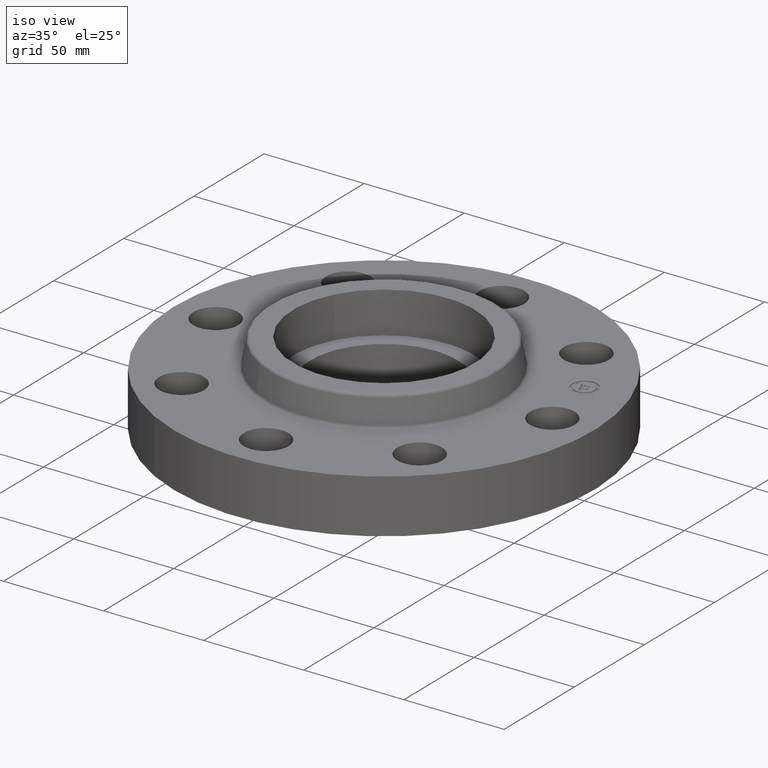
[diagram: clean part render]
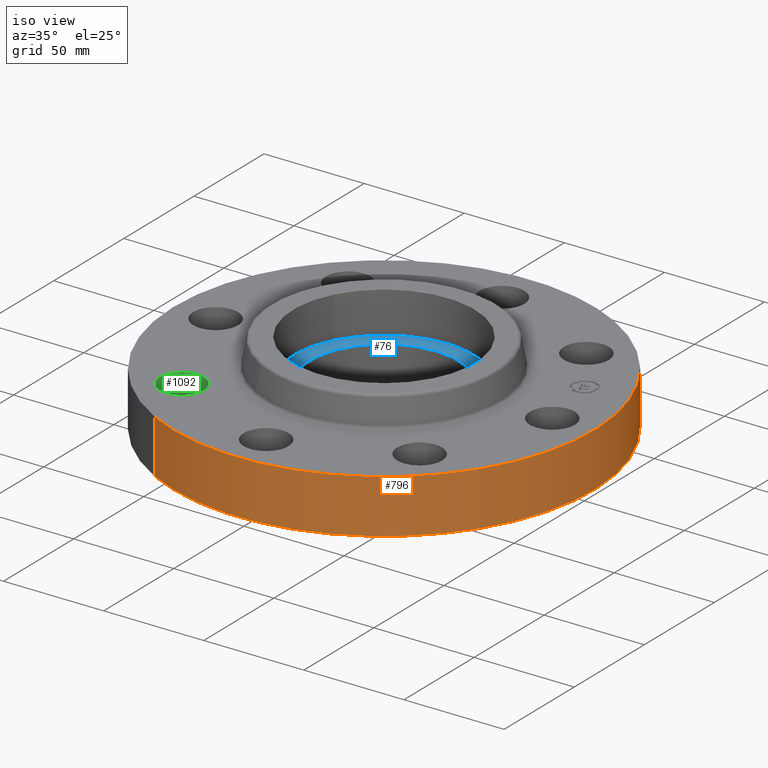
[diagram: same view with three faces highlighted in distinct colors, each labeled with its STEP entity id]
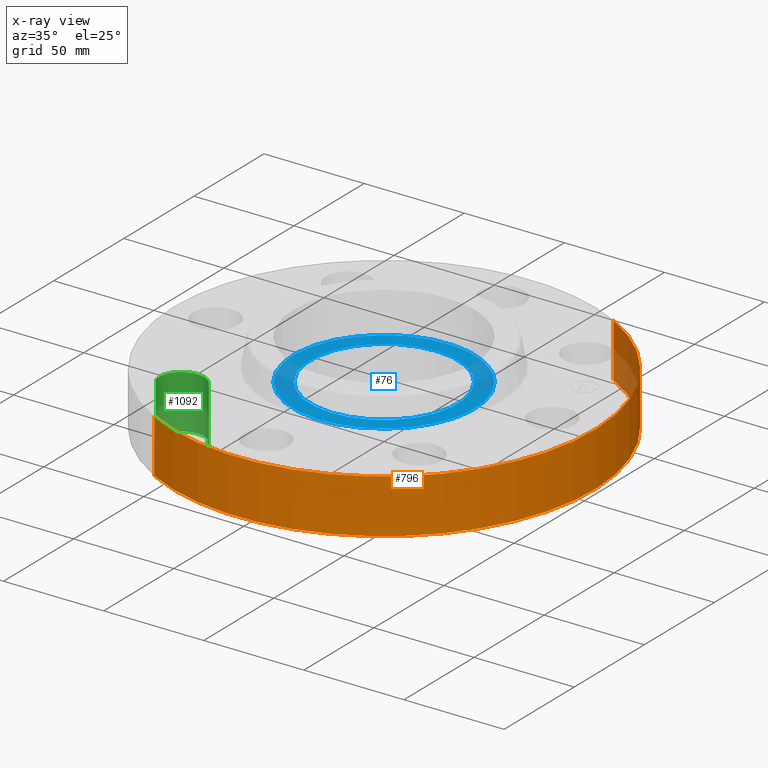
[diagram: x-ray of the same camera — body ghosted, the three highlighted faces saturated]
A machine part, iso view with three faces highlighted in distinct colors.
The next image is the same camera in x-ray (body ghosted, the three faces saturated) — at least one of them is partly hidden behind the body in this view.
Their STEP definitions:

[orange] entity #796 — the highlighted cylindrical surface (partial cylindrical patch) has radius 104.775 mm, axis along (0, 0, -1).
#505=AXIS2_PLACEMENT_3D('Circle Axis2P3D',#503,#504,$) ;
#783=AXIS2_PLACEMENT_3D('Cylinder Axis2P3D',#780,#781,#782) ;
#787=AXIS2_PLACEMENT_3D('Circle Axis2P3D',#785,#786,$) ;
#498=CARTESIAN_POINT('Vertex',(-1.97763034678,-3.62002806781,0.)) ;
#500=CARTESIAN_POINT('Vertex',(1.97763034678,3.62002806783,0.)) ;
#503=CARTESIAN_POINT('Axis2P3D Location',(-1.1189649382E-015,9.99963017027E-012,0.)) ;
#735=CARTESIAN_POINT('Line Origine',(-1.97763034675,-3.62002806781,0.530000000008)) ;
#739=CARTESIAN_POINT('Vertex',(-1.97763034675,-3.62002806781,1.06000000002)) ;
#758=CARTESIAN_POINT('Vertex',(1.97763034678,3.62002806783,1.06)) ;
#761=CARTESIAN_POINT('Line Origine',(1.97763034675,3.62002806781,0.530000000008)) ;
#780=CARTESIAN_POINT('Axis2P3D Location',(0.,0.,0.783750000003)) ;
#785=CARTESIAN_POINT('Axis2P3D Location',(0.,0.,1.06000000002)) ;
#504=DIRECTION('Axis2P3D Direction',(0.,0.,-0.0393700787402)) ;
#736=DIRECTION('Vector Direction',(0.,0.,-0.0393700787402)) ;
#762=DIRECTION('Vector Direction',(0.,0.,-0.0393700787402)) ;
#781=DIRECTION('Axis2P3D Direction',(0.,0.,-0.0393700787402)) ;
#782=DIRECTION('Axis2P3D XDirection',(0.0188750212049,0.0345504945626,0.)) ;
#786=DIRECTION('Axis2P3D Direction',(0.,0.,-0.0393700787402)) ;
#737=VECTOR('Line Direction',#736,0.0393700787402) ;
#763=VECTOR('Line Direction',#762,0.0393700787402) ;
#791=ORIENTED_EDGE('',*,*,#507,.F.) ;
#792=ORIENTED_EDGE('',*,*,#765,.T.) ;
#793=ORIENTED_EDGE('',*,*,#789,.T.) ;
#794=ORIENTED_EDGE('',*,*,#741,.F.) ;
#796=ADVANCED_FACE('PartBody',(#795),#784,.T.) ;
#506=CIRCLE('generated circle',#505,4.12500000004) ;
#788=CIRCLE('generated circle',#787,4.12500000002) ;
#784=CYLINDRICAL_SURFACE('generated cylinder',#783,4.12500000002) ;
#507=EDGE_CURVE('',#501,#499,#506,.T.) ;
#741=EDGE_CURVE('',#499,#740,#738,.F.) ;
#765=EDGE_CURVE('',#501,#759,#764,.F.) ;
#789=EDGE_CURVE('',#759,#740,#788,.T.) ;
#790=EDGE_LOOP('',(#791,#792,#793,#794)) ;
#795=FACE_OUTER_BOUND('',#790,.T.) ;
#738=LINE('Line',#735,#737) ;
#764=LINE('Line',#761,#763) ;
#499=VERTEX_POINT('',#498) ;
#501=VERTEX_POINT('',#500) ;
#740=VERTEX_POINT('',#739) ;
#759=VERTEX_POINT('',#758) ;

[blue] entity #76 — the highlighted planar face has unit normal (0, 0, -1).
#38=AXIS2_PLACEMENT_3D('Plane Axis2P3D',#35,#36,#37) ;
#42=AXIS2_PLACEMENT_3D('Circle Axis2P3D',#40,#41,$) ;
#51=AXIS2_PLACEMENT_3D('Circle Axis2P3D',#49,#50,$) ;
#60=AXIS2_PLACEMENT_3D('Circle Axis2P3D',#58,#59,$) ;
#69=AXIS2_PLACEMENT_3D('Circle Axis2P3D',#67,#68,$) ;
#35=CARTESIAN_POINT('Axis2P3D Location',(1.39870617276E-016,1.04902962957E-016,0.820000000003)) ;
#40=CARTESIAN_POINT('Axis2P3D Location',(3.49676543189E-016,-7.34320740697E-016,0.820000000003)) ;
#44=CARTESIAN_POINT('Vertex',(-1.566484873,0.855774586419,0.820000000003)) ;
#46=CARTESIAN_POINT('Vertex',(1.566484873,-0.855774586419,0.820000000003)) ;
#49=CARTESIAN_POINT('Axis2P3D Location',(-6.99353086374E-017,9.44126666611E-016,0.820000000003)) ;
#58=CARTESIAN_POINT('Axis2P3D Location',(1.39870617276E-016,1.04902962957E-016,0.820000000003)) ;
#62=CARTESIAN_POINT('Vertex',(-0.695167030978,-1.27249471477,0.820000000003)) ;
#64=CARTESIAN_POINT('Vertex',(0.695167030978,1.27249471477,0.820000000003)) ;
#67=CARTESIAN_POINT('Axis2P3D Location',(1.39870617276E-016,1.04902962957E-016,0.820000000003)) ;
#36=DIRECTION('Axis2P3D Direction',(0.,0.,-0.0393700787402)) ;
#37=DIRECTION('Axis2P3D XDirection',(0.0393700787402,0.,0.)) ;
#41=DIRECTION('Axis2P3D Direction',(0.,0.,-0.0393700787402)) ;
#50=DIRECTION('Axis2P3D Direction',(0.,0.,-0.0393700787402)) ;
#59=DIRECTION('Axis2P3D Direction',(0.,0.,-0.0393700787402)) ;
#68=DIRECTION('Axis2P3D Direction',(0.,0.,-0.0393700787402)) ;
#55=ORIENTED_EDGE('',*,*,#48,.F.) ;
#56=ORIENTED_EDGE('',*,*,#53,.F.) ;
#73=ORIENTED_EDGE('',*,*,#66,.T.) ;
#74=ORIENTED_EDGE('',*,*,#71,.T.) ;
#75=FACE_BOUND('',#72,.T.) ;
#76=ADVANCED_FACE('PartBody',(#57,#75),#39,.F.) ;
#43=CIRCLE('generated circle',#42,1.78500000003) ;
#52=CIRCLE('generated circle',#51,1.78500000003) ;
#61=CIRCLE('generated circle',#60,1.45000000002) ;
#70=CIRCLE('generated circle',#69,1.45000000002) ;
#48=EDGE_CURVE('',#45,#47,#43,.T.) ;
#53=EDGE_CURVE('',#47,#45,#52,.T.) ;
#66=EDGE_CURVE('',#63,#65,#61,.T.) ;
#71=EDGE_CURVE('',#65,#63,#70,.T.) ;
#54=EDGE_LOOP('',(#55,#56)) ;
#72=EDGE_LOOP('',(#73,#74)) ;
#57=FACE_OUTER_BOUND('',#54,.T.) ;
#39=PLANE('',#38) ;
#45=VERTEX_POINT('',#44) ;
#47=VERTEX_POINT('',#46) ;
#63=VERTEX_POINT('',#62) ;
#65=VERTEX_POINT('',#64) ;

[green] entity #1092 — the highlighted cylindrical surface (edge-blend (fillet) strip) has radius 11.176 mm, axis along (-0, 0, -1).
#581=AXIS2_PLACEMENT_3D('Circle Axis2P3D',#579,#580,$) ;
#1079=AXIS2_PLACEMENT_3D('Cylinder Axis2P3D',#1076,#1077,#1078) ;
#1083=AXIS2_PLACEMENT_3D('Circle Axis2P3D',#1081,#1082,$) ;
#574=CARTESIAN_POINT('Vertex',(-1.91832160856,-2.21664605207,0.)) ;
#576=CARTESIAN_POINT('Vertex',(-2.76272528292,-2.46440083946,0.)) ;
#579=CARTESIAN_POINT('Axis2P3D Location',(-2.34052344575,-2.34052344572,0.)) ;
#1031=CARTESIAN_POINT('Line Origine',(-1.91832160854,-2.21664605204,0.529999999983)) ;
#1035=CARTESIAN_POINT('Vertex',(-1.91832160855,-2.21664605203,1.05999999999)) ;
#1038=CARTESIAN_POINT('Line Origine',(-2.76272528294,-2.46440083944,0.529999999983)) ;
#1042=CARTESIAN_POINT('Vertex',(-2.76272528294,-2.46440083944,1.05999999999)) ;
#1076=CARTESIAN_POINT('Axis2P3D Location',(-2.34052344574,-2.34052344574,1.05606299213)) ;
#1081=CARTESIAN_POINT('Axis2P3D Location',(-2.34052344574,-2.34052344574,1.05999999999)) ;
#580=DIRECTION('Axis2P3D Direction',(0.,0.,-0.0393700787402)) ;
#1032=DIRECTION('Vector Direction',(0.,0.,-0.0393700787402)) ;
#1039=DIRECTION('Vector Direction',(0.,0.,-0.0393700787402)) ;
#1077=DIRECTION('Axis2P3D Direction',(-0.,0.,-0.0393700787402)) ;
#1078=DIRECTION('Axis2P3D XDirection',(-0.0377775444876,-0.0110842335096,0.)) ;
#1082=DIRECTION('Axis2P3D Direction',(-0.,0.,-0.0393700787402)) ;
#1033=VECTOR('Line Direction',#1032,0.0393700787402) ;
#1040=VECTOR('Line Direction',#1039,0.0393700787402) ;
#1087=ORIENTED_EDGE('',*,*,#1044,.F.) ;
#1088=ORIENTED_EDGE('',*,*,#583,.T.) ;
#1089=ORIENTED_EDGE('',*,*,#1037,.T.) ;
#1090=ORIENTED_EDGE('',*,*,#1085,.F.) ;
#1092=ADVANCED_FACE('PartBody',(#1091),#1080,.F.) ;
#582=CIRCLE('generated circle',#581,0.439999999984) ;
#1084=CIRCLE('generated circle',#1083,0.440000000002) ;
#1080=CYLINDRICAL_SURFACE('generated cylinder',#1079,0.440000000002) ;
#583=EDGE_CURVE('',#577,#575,#582,.T.) ;
#1037=EDGE_CURVE('',#575,#1036,#1034,.F.) ;
#1044=EDGE_CURVE('',#577,#1043,#1041,.F.) ;
#1085=EDGE_CURVE('',#1043,#1036,#1084,.T.) ;
#1086=EDGE_LOOP('',(#1087,#1088,#1089,#1090)) ;
#1091=FACE_OUTER_BOUND('',#1086,.T.) ;
#1034=LINE('Line',#1031,#1033) ;
#1041=LINE('Line',#1038,#1040) ;
#575=VERTEX_POINT('',#574) ;
#577=VERTEX_POINT('',#576) ;
#1036=VERTEX_POINT('',#1035) ;
#1043=VERTEX_POINT('',#1042) ;